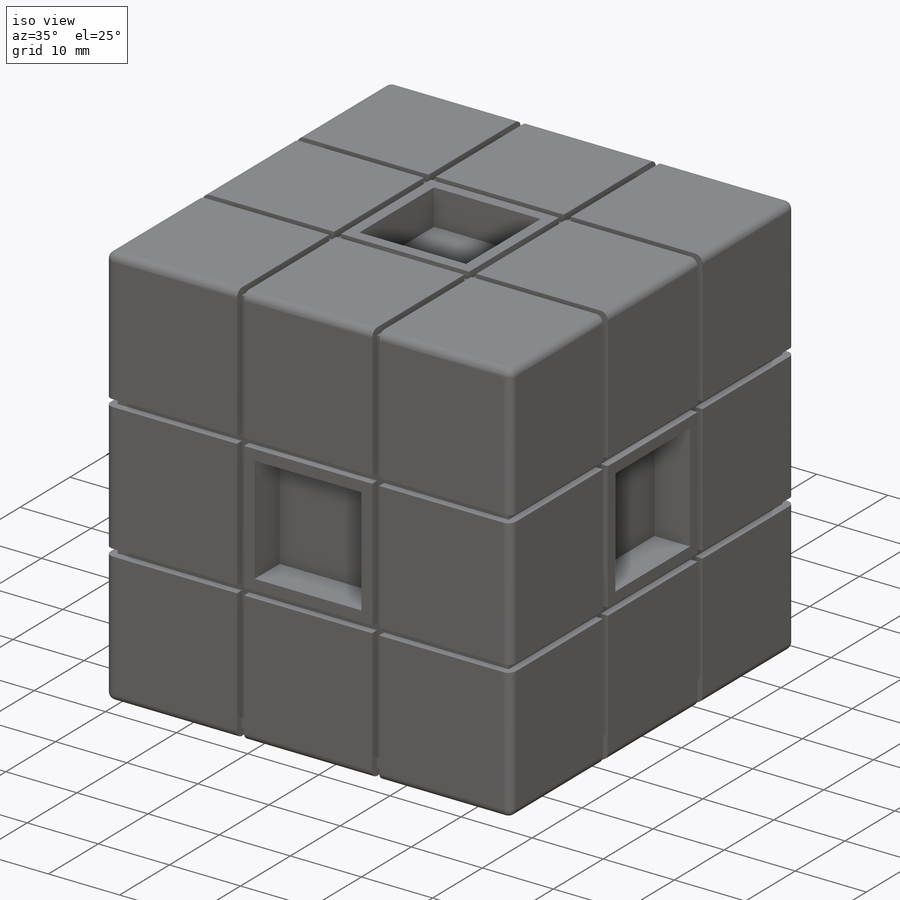
[diagram: iso view]
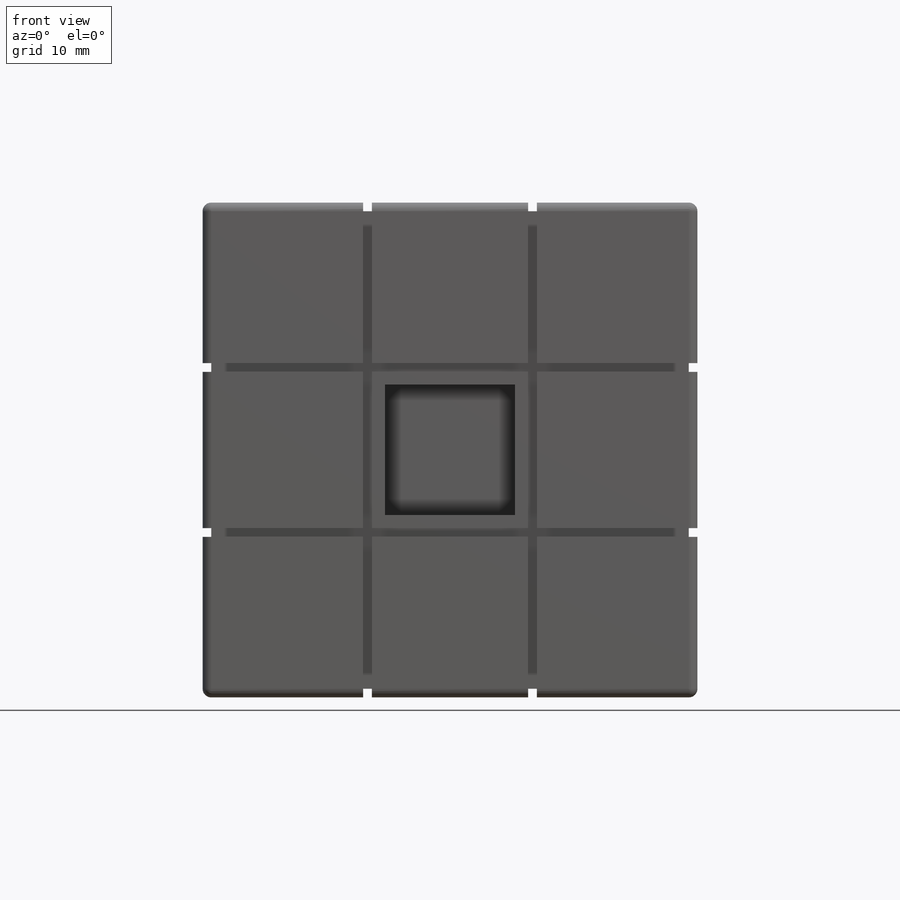
[diagram: front view]
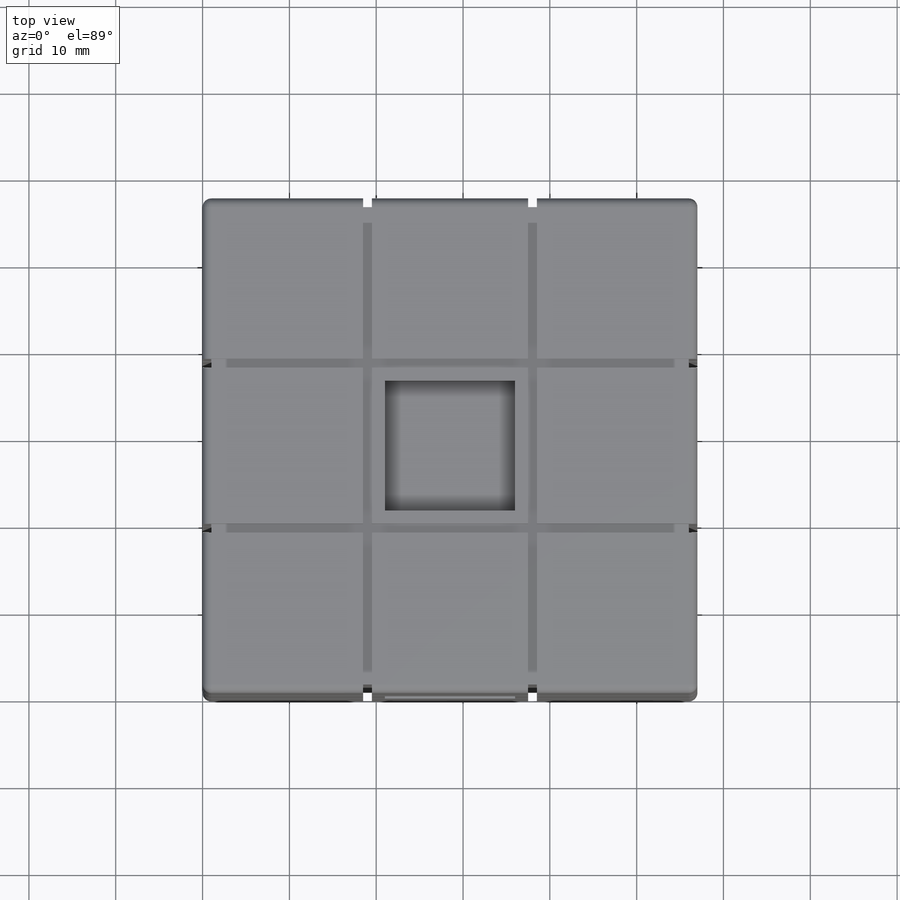
[diagram: top view]
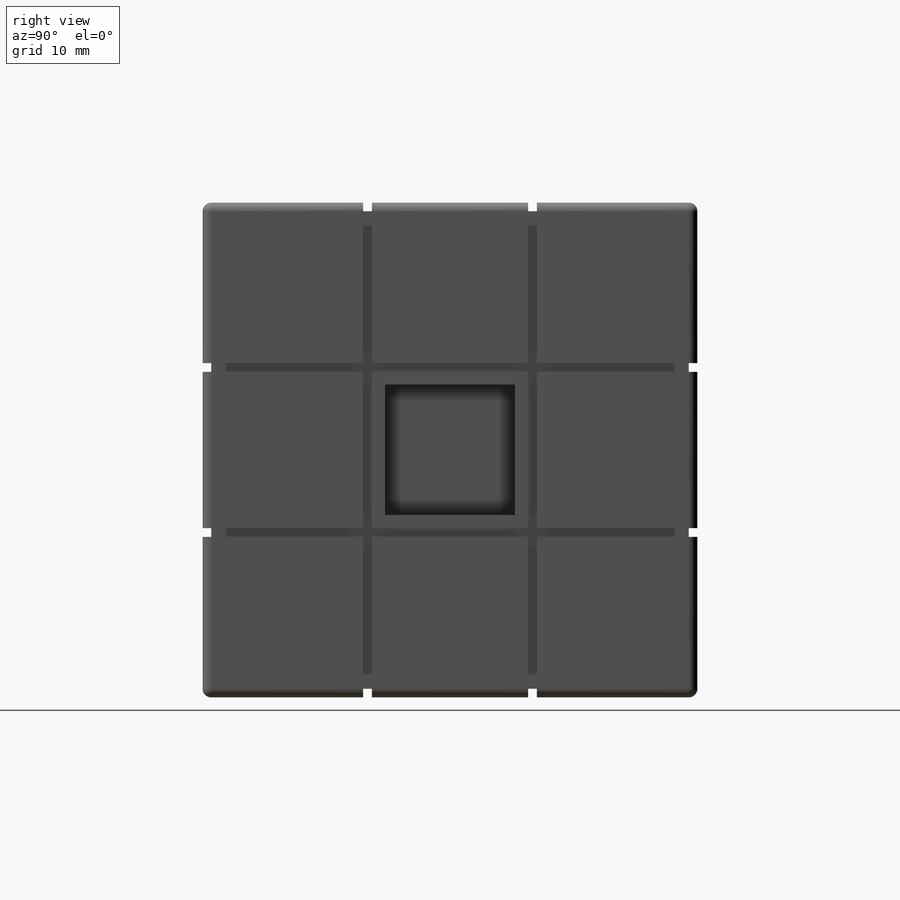
[diagram: right view]
SOLIDWORKS PART (.sldprt)
format: sldprt  version: not decoded by parser v0  size: 726,016 bytes
history: native  units: mm
features: sketch x12, cut_extrude x11, plane x3, fillet x3, material x1, extrude x1 (+10 scaffold rows collapsed)
feature tree (41):
  scaffold x10  (default folders/planes/origin — collapsed)
  material  "材质 <未指定>"
  plane  "前视基准面"
  plane  "上视基准面"
  plane  "右视基准面"
  sketch  "草图1"
  extrude  "凸台-拉伸1"  Depth=57mm
  sketch  "草图2"
  cut_extrude  "切除-拉伸3"  Depth=5mm
  sketch  "草图5"
  cut_extrude  "切除-拉伸4"  Depth=5mm
  sketch  "草图6"
  cut_extrude  "切除-拉伸5"  Depth=5mm
  sketch  "草图8"
  cut_extrude  "切除-拉伸6"  Depth=5mm
  sketch  "草图9"
  cut_extrude  "切除-拉伸7"  Depth=5mm
  sketch  "草图10"
  cut_extrude  "切除-拉伸8"  Depth=5mm
  sketch  "草图12"
  cut_extrude  "切除-拉伸9"  Depth=1mm
  sketch  "草图13"  dims[D1=1.0mm]
  cut_extrude  "切除-拉伸10"  [1 undecoded]
  sketch  "草图14"
  cut_extrude  "切除-拉伸11"  [1 undecoded]
  sketch  "草图15"
  cut_extrude  "切除-拉伸12"  [1 undecoded]
  sketch  "草图16"
  cut_extrude  "切除-拉伸13"  [1 undecoded]
  fillet  "圆角3"  Radius=1mm
  fillet  "圆角4"  Radius=1mm
  fillet  "圆角5"  Radius=1mm
decode coverage: 12 of 27 modeling features carry decoded parameters
note: 4 parameter values undecoded
summary: no parameter record found for 4 features
note: suppression state not decoded; provenance and decode notes live in map.json
